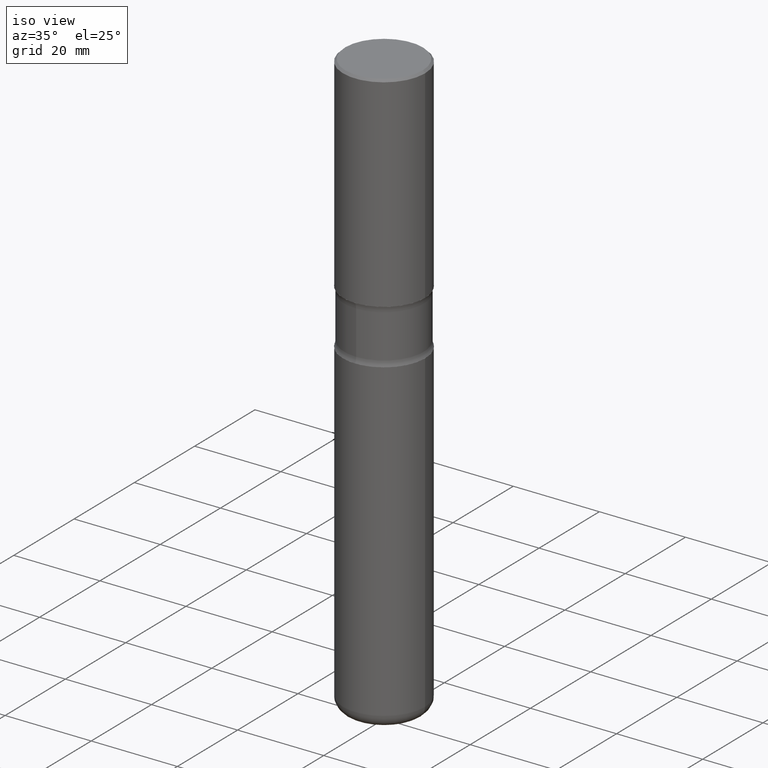
[diagram: clean part render]
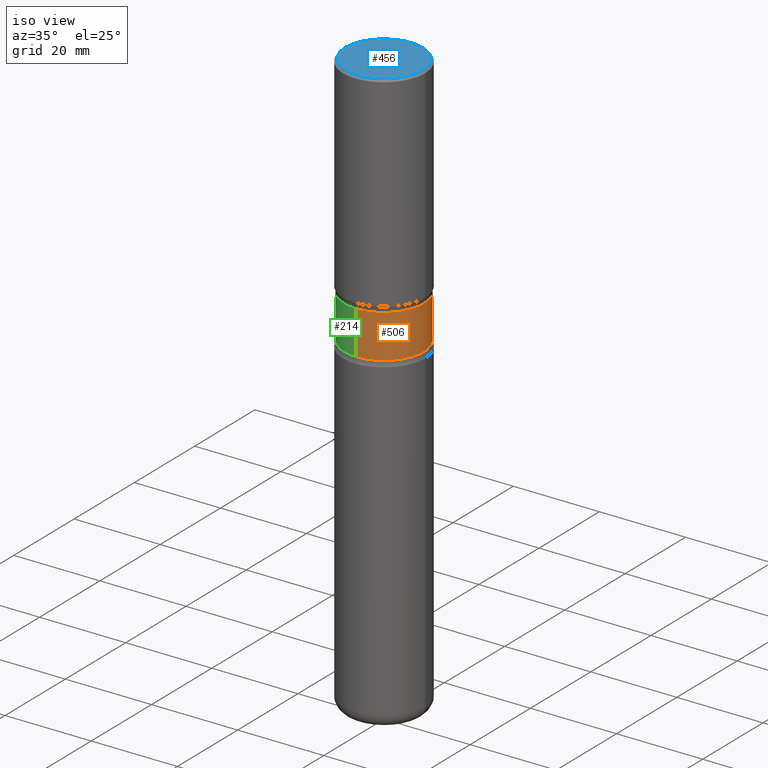
[diagram: same view with three faces highlighted in distinct colors, each labeled with its STEP entity id]
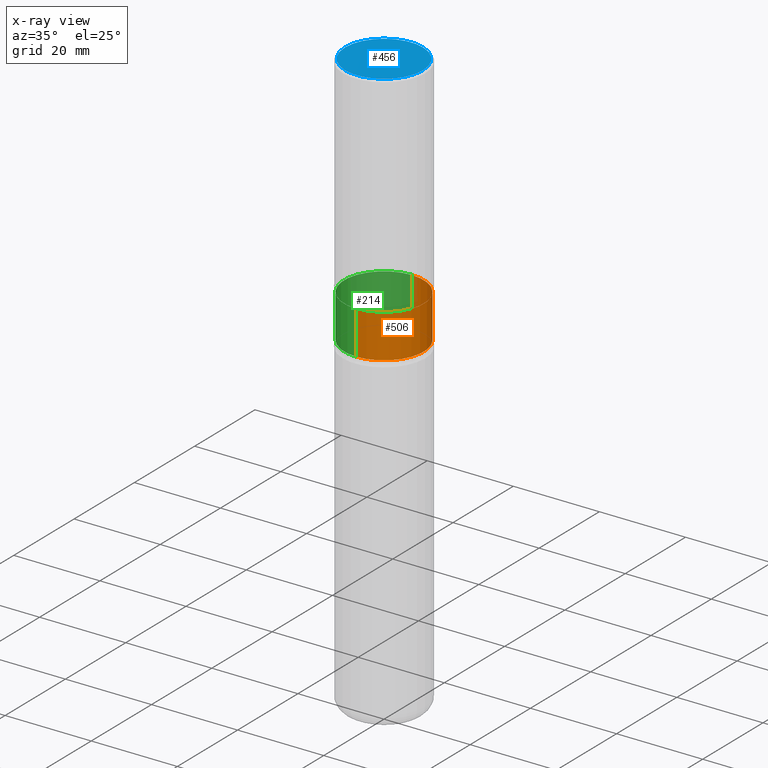
[diagram: x-ray of the same camera — body ghosted, the three highlighted faces saturated]
A machine part, iso view with three faces highlighted in distinct colors.
The next image is the same camera in x-ray (body ghosted, the three faces saturated) — at least one of them is partly hidden behind the body in this view.
Their STEP definitions:

[orange] entity #506 — the highlighted cylindrical surface (partial cylindrical patch) has radius 9.2456 mm, axis along (0, -0, -1).
#25 = ORIENTED_EDGE ( 'NONE', *, *, #116, .T. ) ;
#31 = FACE_OUTER_BOUND ( 'NONE', #306, .T. ) ;
#52 = VERTEX_POINT ( 'NONE', #74 ) ;
#53 = DIRECTION ( 'NONE',  ( 2.477262793819919418E-29, -3.445950538948741294E-15, -1.000000000000000000 ) ) ;
#57 = EDGE_CURVE ( 'NONE', #344, #398, #507, .T. ) ;
#74 = CARTESIAN_POINT ( 'NONE',  ( 2.541798414677857502E-15, 0.3639999999999918856, -2.323726225026823577 ) ) ;
#116 = EDGE_CURVE ( 'NONE', #398, #460, #121, .T. ) ;
#121 = LINE ( 'NONE', #373, #234 ) ;
#144 = CARTESIAN_POINT ( 'NONE',  ( -2.534954010176524559E-15, -0.3640000000000081504, -2.323726225026820913 ) ) ;
#162 = CARTESIAN_POINT ( 'NONE',  ( 1.323977679614945879E-28, -1.863011979659869597E-14, -5.375000000000000888 ) ) ;
#181 = DIRECTION ( 'NONE',  ( 2.477262793819919418E-29, -3.445950538948741294E-15, -1.000000000000000000 ) ) ;
#185 = EDGE_CURVE ( 'NONE', #344, #52, #387, .T. ) ;
#195 = DIRECTION ( 'NONE',  ( 6.982962677686265922E-15, 1.000000000000000000, -3.752538452835526126E-15 ) ) ;
#205 = ORIENTED_EDGE ( 'NONE', *, *, #185, .F. ) ;
#209 = CYLINDRICAL_SURFACE ( 'NONE', #372, 0.3639999999999999902 ) ;
#234 = VECTOR ( 'NONE', #556, 39.37007874015748143 ) ;
#244 = CIRCLE ( 'NONE', #547, 0.3639999999999999902 ) ;
#245 = ORIENTED_EDGE ( 'NONE', *, *, #57, .T. ) ;
#248 = CARTESIAN_POINT ( 'NONE',  ( 4.696375632819490183E-29, -6.745979802780860962E-15, -1.926273774973178643 ) ) ;
#251 = DIRECTION ( 'NONE',  ( 6.982962677686265922E-15, 1.000000000000000000, -3.752538452835526915E-15 ) ) ;
#264 = AXIS2_PLACEMENT_3D ( 'NONE', #248, #418, #251 ) ;
#303 = CARTESIAN_POINT ( 'NONE',  ( 5.680969799649951184E-29, -8.115581287249711979E-15, -2.323726225026822245 ) ) ;
#306 = EDGE_LOOP ( 'NONE', ( #245, #25, #368, #205 ) ) ;
#335 = VECTOR ( 'NONE', #181, 39.37007874015748143 ) ;
#344 = VERTEX_POINT ( 'NONE', #407 ) ;
#368 = ORIENTED_EDGE ( 'NONE', *, *, #427, .F. ) ;
#371 = DIRECTION ( 'NONE',  ( 6.982962677686265922E-15, 1.000000000000000000, -3.002030762268421058E-15 ) ) ;
#372 = AXIS2_PLACEMENT_3D ( 'NONE', #162, #551, #371 ) ;
#373 = CARTESIAN_POINT ( 'NONE',  ( -2.497221271188704667E-15, -0.3640000000000186420, -5.374999999999999112 ) ) ;
#387 = LINE ( 'NONE', #520, #335 ) ;
#398 = VERTEX_POINT ( 'NONE', #491 ) ;
#407 = CARTESIAN_POINT ( 'NONE',  ( 2.541798414677847641E-15, 0.3639999999999931624, -1.926273774973179975 ) ) ;
#418 = DIRECTION ( 'NONE',  ( 2.477262793819919418E-29, -3.445950538948741294E-15, -1.000000000000000000 ) ) ;
#427 = EDGE_CURVE ( 'NONE', #52, #460, #244, .T. ) ;
#460 = VERTEX_POINT ( 'NONE', #144 ) ;
#491 = CARTESIAN_POINT ( 'NONE',  ( -2.534954010176535209E-15, -0.3640000000000067071, -1.926273774973177311 ) ) ;
#506 = ADVANCED_FACE ( 'NONE', ( #31 ), #209, .T. ) ;
#507 = CIRCLE ( 'NONE', #264, 0.3639999999999999347 ) ;
#520 = CARTESIAN_POINT ( 'NONE',  ( 2.541798414677933233E-15, 0.3639999999999813385, -5.375000000000001776 ) ) ;
#547 = AXIS2_PLACEMENT_3D ( 'NONE', #303, #53, #195 ) ;
#551 = DIRECTION ( 'NONE',  ( 2.477262793819919418E-29, -3.445950538948741294E-15, -1.000000000000000000 ) ) ;
#556 = DIRECTION ( 'NONE',  ( 2.477262793819919418E-29, -3.445950538948741294E-15, -1.000000000000000000 ) ) ;

[blue] entity #456 — the highlighted planar face has unit normal (0, -0, -1).
#12 = CARTESIAN_POINT ( 'NONE',  ( 2.478951750578624209E-15, 0.3549999999999999822, -1.233073106554166000E-15 ) ) ;
#44 = DIRECTION ( 'NONE',  ( 1.000000000000000000, -6.982962677686265922E-15, 4.876231632511988183E-29 ) ) ;
#48 = CARTESIAN_POINT ( 'NONE',  ( -0.3549999999999999822, 2.513866563967055464E-15, 1.280553747028377567E-17 ) ) ;
#56 = DIRECTION ( 'NONE',  ( 1.000000000000000000, -6.982962677686265922E-15, 4.876231632511988183E-29 ) ) ;
#80 = AXIS2_PLACEMENT_3D ( 'NONE', #433, #224, #44 ) ;
#171 = EDGE_CURVE ( 'NONE', #386, #182, #392, .T. ) ;
#178 = AXIS2_PLACEMENT_3D ( 'NONE', #12, #192, #353 ) ;
#182 = VERTEX_POINT ( 'NONE', #48 ) ;
#192 = DIRECTION ( 'NONE',  ( 2.438088387897960049E-29, -3.491481338843145188E-15, -1.000000000000000000 ) ) ;
#224 = DIRECTION ( 'NONE',  ( -2.445468806185136597E-29, 3.491481338843145583E-15, 1.000000000000000000 ) ) ;
#235 = FACE_OUTER_BOUND ( 'NONE', #272, .T. ) ;
#238 = ORIENTED_EDGE ( 'NONE', *, *, #435, .T. ) ;
#252 = CIRCLE ( 'NONE', #378, 0.3549999999999999822 ) ;
#272 = EDGE_LOOP ( 'NONE', ( #238, #339 ) ) ;
#279 = CARTESIAN_POINT ( 'NONE',  ( -3.131554243005659264E-46, 4.471029511141341874E-32, 1.280553747030123384E-17 ) ) ;
#339 = ORIENTED_EDGE ( 'NONE', *, *, #171, .T. ) ;
#353 = DIRECTION ( 'NONE',  ( -1.000000000000000000, 6.982962677686265922E-15, -4.876176775795935793E-29 ) ) ;
#378 = AXIS2_PLACEMENT_3D ( 'NONE', #279, #446, #56 ) ;
#386 = VERTEX_POINT ( 'NONE', #524 ) ;
#392 = CIRCLE ( 'NONE', #80, 0.3549999999999999822 ) ;
#433 = CARTESIAN_POINT ( 'NONE',  ( -3.131554243005659264E-46, 4.471029511141341874E-32, 1.280553747030123384E-17 ) ) ;
#435 = EDGE_CURVE ( 'NONE', #182, #386, #252, .T. ) ;
#436 = PLANE ( 'NONE',  #178 ) ;
#446 = DIRECTION ( 'NONE',  ( -2.445468806185136597E-29, 3.491481338843145583E-15, 1.000000000000000000 ) ) ;
#456 = ADVANCED_FACE ( 'NONE', ( #235 ), #436, .F. ) ;
#524 = CARTESIAN_POINT ( 'NONE',  ( 0.3549999999999999822, -2.538996582575041048E-15, 1.280553747031877983E-17 ) ) ;

[green] entity #214 — the highlighted cylindrical surface (partial cylindrical patch) has radius 9.2456 mm, axis along (0, -0, -1).
#4 = EDGE_CURVE ( 'NONE', #460, #52, #42, .T. ) ;
#8 = CYLINDRICAL_SURFACE ( 'NONE', #515, 0.3639999999999999902 ) ;
#22 = ORIENTED_EDGE ( 'NONE', *, *, #4, .F. ) ;
#42 = CIRCLE ( 'NONE', #226, 0.3639999999999999902 ) ;
#52 = VERTEX_POINT ( 'NONE', #74 ) ;
#74 = CARTESIAN_POINT ( 'NONE',  ( 2.541798414677857502E-15, 0.3639999999999918856, -2.323726225026823577 ) ) ;
#75 = DIRECTION ( 'NONE',  ( 2.477262793819919418E-29, -3.445950538948741294E-15, -1.000000000000000000 ) ) ;
#84 = CARTESIAN_POINT ( 'NONE',  ( 5.680969799649951184E-29, -8.115581287249711979E-15, -2.323726225026822245 ) ) ;
#95 = FACE_OUTER_BOUND ( 'NONE', #492, .T. ) ;
#116 = EDGE_CURVE ( 'NONE', #398, #460, #121, .T. ) ;
#121 = LINE ( 'NONE', #373, #234 ) ;
#137 = DIRECTION ( 'NONE',  ( 6.982962677686265922E-15, 1.000000000000000000, -3.002030762268421058E-15 ) ) ;
#144 = CARTESIAN_POINT ( 'NONE',  ( -2.534954010176524559E-15, -0.3640000000000081504, -2.323726225026820913 ) ) ;
#154 = AXIS2_PLACEMENT_3D ( 'NONE', #555, #75, #247 ) ;
#163 = ORIENTED_EDGE ( 'NONE', *, *, #185, .T. ) ;
#181 = DIRECTION ( 'NONE',  ( 2.477262793819919418E-29, -3.445950538948741294E-15, -1.000000000000000000 ) ) ;
#185 = EDGE_CURVE ( 'NONE', #344, #52, #387, .T. ) ;
#212 = DIRECTION ( 'NONE',  ( 2.477262793819919418E-29, -3.445950538948741294E-15, -1.000000000000000000 ) ) ;
#214 = ADVANCED_FACE ( 'NONE', ( #95 ), #8, .T. ) ;
#226 = AXIS2_PLACEMENT_3D ( 'NONE', #84, #212, #255 ) ;
#234 = VECTOR ( 'NONE', #556, 39.37007874015748143 ) ;
#247 = DIRECTION ( 'NONE',  ( 6.982962677686265922E-15, 1.000000000000000000, -3.752538452835526915E-15 ) ) ;
#255 = DIRECTION ( 'NONE',  ( 6.982962677686265922E-15, 1.000000000000000000, -3.752538452835526126E-15 ) ) ;
#280 = ORIENTED_EDGE ( 'NONE', *, *, #116, .F. ) ;
#335 = VECTOR ( 'NONE', #181, 39.37007874015748143 ) ;
#336 = ORIENTED_EDGE ( 'NONE', *, *, #510, .T. ) ;
#337 = CARTESIAN_POINT ( 'NONE',  ( 1.323977679614945879E-28, -1.863011979659869597E-14, -5.375000000000000888 ) ) ;
#344 = VERTEX_POINT ( 'NONE', #407 ) ;
#373 = CARTESIAN_POINT ( 'NONE',  ( -2.497221271188704667E-15, -0.3640000000000186420, -5.374999999999999112 ) ) ;
#387 = LINE ( 'NONE', #520, #335 ) ;
#398 = VERTEX_POINT ( 'NONE', #491 ) ;
#407 = CARTESIAN_POINT ( 'NONE',  ( 2.541798414677847641E-15, 0.3639999999999931624, -1.926273774973179975 ) ) ;
#460 = VERTEX_POINT ( 'NONE', #144 ) ;
#465 = DIRECTION ( 'NONE',  ( 2.477262793819919418E-29, -3.445950538948741294E-15, -1.000000000000000000 ) ) ;
#468 = CIRCLE ( 'NONE', #154, 0.3639999999999999347 ) ;
#491 = CARTESIAN_POINT ( 'NONE',  ( -2.534954010176535209E-15, -0.3640000000000067071, -1.926273774973177311 ) ) ;
#492 = EDGE_LOOP ( 'NONE', ( #280, #336, #163, #22 ) ) ;
#510 = EDGE_CURVE ( 'NONE', #398, #344, #468, .T. ) ;
#515 = AXIS2_PLACEMENT_3D ( 'NONE', #337, #465, #137 ) ;
#520 = CARTESIAN_POINT ( 'NONE',  ( 2.541798414677933233E-15, 0.3639999999999813385, -5.375000000000001776 ) ) ;
#555 = CARTESIAN_POINT ( 'NONE',  ( 4.696375632819490183E-29, -6.745979802780860962E-15, -1.926273774973178643 ) ) ;
#556 = DIRECTION ( 'NONE',  ( 2.477262793819919418E-29, -3.445950538948741294E-15, -1.000000000000000000 ) ) ;